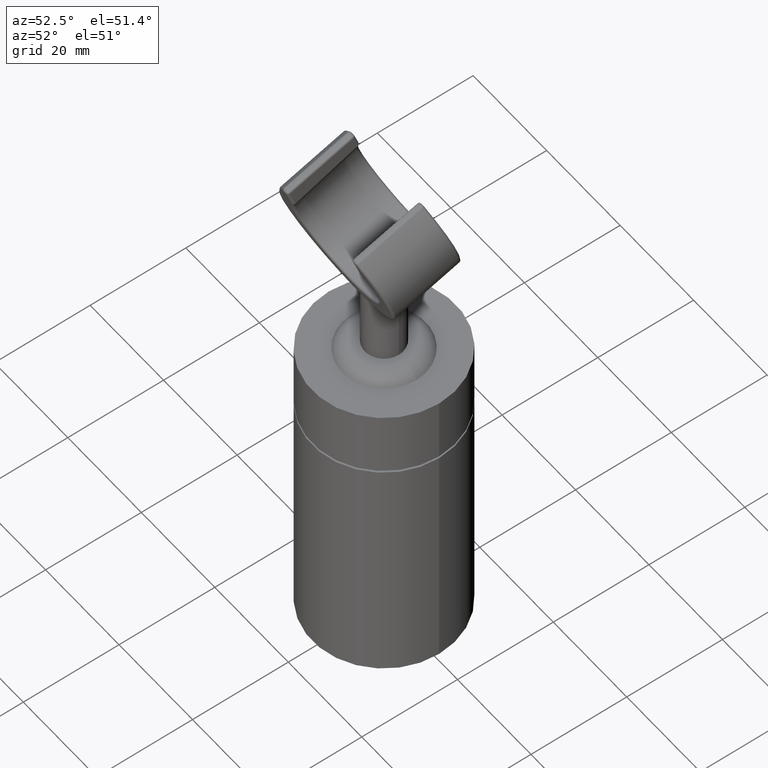
[diagram: clean part render]
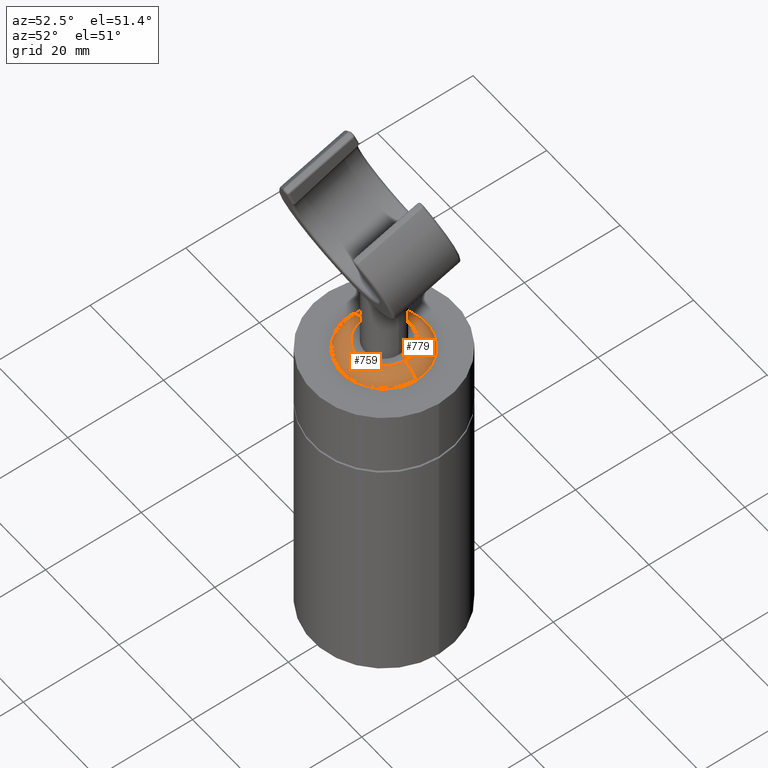
[diagram: same view with one multi-face feature highlighted, each face labeled with its STEP entity id]
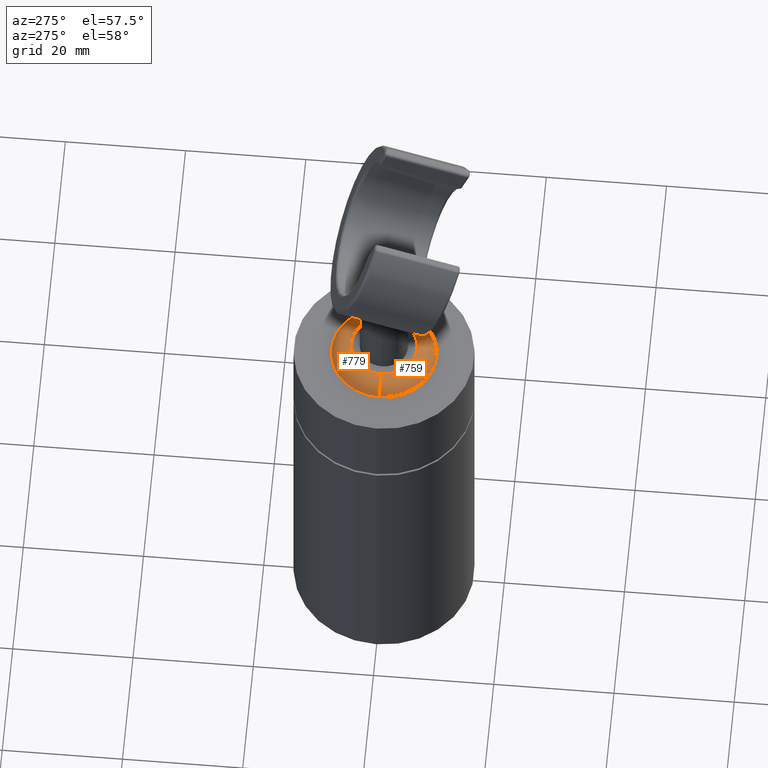
[diagram: same view with one multi-face feature highlighted, each face labeled with its STEP entity id]
A machine part, auxiliary view. The highlighted faces form ONE feature: a constant-radius fillet chain: 2 tangent blend faces with common blend radius 3.6406 mm. The faces share edges in the B-rep.
A second angle (auxiliary view) of the same feature is appended — it is thin or edge-on in the first view.
Their STEP definitions:
[1] entity #779 (Torus):
#26=CARTESIAN_POINT('',(5.5E0,0.E0,1.2859375E1));
#27=DIRECTION('',(0.E0,1.E0,0.E0));
#28=DIRECTION('',(0.E0,0.E0,1.E0));
#29=AXIS2_PLACEMENT_3D('',#26,#27,#28);
#31=CARTESIAN_POINT('',(-5.5E0,0.E0,1.2859375E1));
#32=DIRECTION('',(0.E0,-1.E0,0.E0));
#33=DIRECTION('',(0.E0,0.E0,1.E0));
#34=AXIS2_PLACEMENT_3D('',#31,#32,#33);
#41=CARTESIAN_POINT('',(-1.258324586124E-14,0.E0,1.65E1));
#42=DIRECTION('',(0.E0,0.E0,1.E0));
#43=DIRECTION('',(1.E0,0.E0,0.E0));
#44=AXIS2_PLACEMENT_3D('',#41,#42,#43);
#46=CARTESIAN_POINT('',(-1.221585182149E-14,0.E0,1.45E1));
#47=DIRECTION('',(0.E0,0.E0,1.E0));
#48=DIRECTION('',(1.E0,0.E0,0.E0));
#49=AXIS2_PLACEMENT_3D('',#46,#47,#48);
#604=CARTESIAN_POINT('',(5.5E0,0.E0,1.65E1));
#605=CARTESIAN_POINT('',(8.75E0,0.E0,1.45E1));
#606=VERTEX_POINT('',#604);
#607=VERTEX_POINT('',#605);
#620=CARTESIAN_POINT('',(-5.5E0,0.E0,1.65E1));
#621=CARTESIAN_POINT('',(-8.75E0,0.E0,1.45E1));
#622=VERTEX_POINT('',#620);
#623=VERTEX_POINT('',#621);
#767=CARTESIAN_POINT('',(-1.191447389827E-14,0.E0,1.2859375E1));
#768=DIRECTION('',(0.E0,0.E0,1.E0));
#769=DIRECTION('',(-1.E0,0.E0,0.E0));
#770=AXIS2_PLACEMENT_3D('',#767,#768,#769);
#771=TOROIDAL_SURFACE('',#770,5.5E0,3.640625E0);
#772=ORIENTED_EDGE('',*,*,#750,.F.);
#773=ORIENTED_EDGE('',*,*,#727,.T.);
#774=ORIENTED_EDGE('',*,*,#754,.T.);
#776=ORIENTED_EDGE('',*,*,#775,.F.);
#777=EDGE_LOOP('',(#772,#773,#774,#776));
#778=FACE_OUTER_BOUND('',#777,.F.);
#779=ADVANCED_FACE('',(#778),#771,.T.);
#30=CIRCLE('',#29,3.640625E0);
#35=CIRCLE('',#34,3.640625E0);
#45=CIRCLE('',#44,5.5E0);
#50=CIRCLE('',#49,8.75E0);
#727=EDGE_CURVE('',#606,#622,#45,.T.);
#750=EDGE_CURVE('',#606,#607,#30,.T.);
#754=EDGE_CURVE('',#622,#623,#35,.T.);
#775=EDGE_CURVE('',#607,#623,#50,.T.);
[2] entity #759 (Torus):
#26=CARTESIAN_POINT('',(5.5E0,0.E0,1.2859375E1));
#27=DIRECTION('',(0.E0,1.E0,0.E0));
#28=DIRECTION('',(0.E0,0.E0,1.E0));
#29=AXIS2_PLACEMENT_3D('',#26,#27,#28);
#31=CARTESIAN_POINT('',(-5.5E0,0.E0,1.2859375E1));
#32=DIRECTION('',(0.E0,-1.E0,0.E0));
#33=DIRECTION('',(0.E0,0.E0,1.E0));
#34=AXIS2_PLACEMENT_3D('',#31,#32,#33);
#36=CARTESIAN_POINT('',(-1.258324586124E-14,0.E0,1.65E1));
#37=DIRECTION('',(0.E0,0.E0,-1.E0));
#38=DIRECTION('',(1.E0,0.E0,0.E0));
#39=AXIS2_PLACEMENT_3D('',#36,#37,#38);
#51=CARTESIAN_POINT('',(-1.221585182149E-14,0.E0,1.45E1));
#52=DIRECTION('',(0.E0,0.E0,-1.E0));
#53=DIRECTION('',(1.E0,0.E0,0.E0));
#54=AXIS2_PLACEMENT_3D('',#51,#52,#53);
#604=CARTESIAN_POINT('',(5.5E0,0.E0,1.65E1));
#605=CARTESIAN_POINT('',(8.75E0,0.E0,1.45E1));
#606=VERTEX_POINT('',#604);
#607=VERTEX_POINT('',#605);
#620=CARTESIAN_POINT('',(-5.5E0,0.E0,1.65E1));
#621=CARTESIAN_POINT('',(-8.75E0,0.E0,1.45E1));
#622=VERTEX_POINT('',#620);
#623=VERTEX_POINT('',#621);
#745=CARTESIAN_POINT('',(-1.191447389827E-14,0.E0,1.2859375E1));
#746=DIRECTION('',(0.E0,0.E0,1.E0));
#747=DIRECTION('',(-1.E0,0.E0,0.E0));
#748=AXIS2_PLACEMENT_3D('',#745,#746,#747);
#749=TOROIDAL_SURFACE('',#748,5.5E0,3.640625E0);
#751=ORIENTED_EDGE('',*,*,#750,.T.);
#753=ORIENTED_EDGE('',*,*,#752,.T.);
#755=ORIENTED_EDGE('',*,*,#754,.F.);
#756=ORIENTED_EDGE('',*,*,#725,.F.);
#757=EDGE_LOOP('',(#751,#753,#755,#756));
#758=FACE_OUTER_BOUND('',#757,.F.);
#759=ADVANCED_FACE('',(#758),#749,.T.);
#30=CIRCLE('',#29,3.640625E0);
#35=CIRCLE('',#34,3.640625E0);
#40=CIRCLE('',#39,5.5E0);
#55=CIRCLE('',#54,8.75E0);
#725=EDGE_CURVE('',#606,#622,#40,.T.);
#750=EDGE_CURVE('',#606,#607,#30,.T.);
#752=EDGE_CURVE('',#607,#623,#55,.T.);
#754=EDGE_CURVE('',#622,#623,#35,.T.);